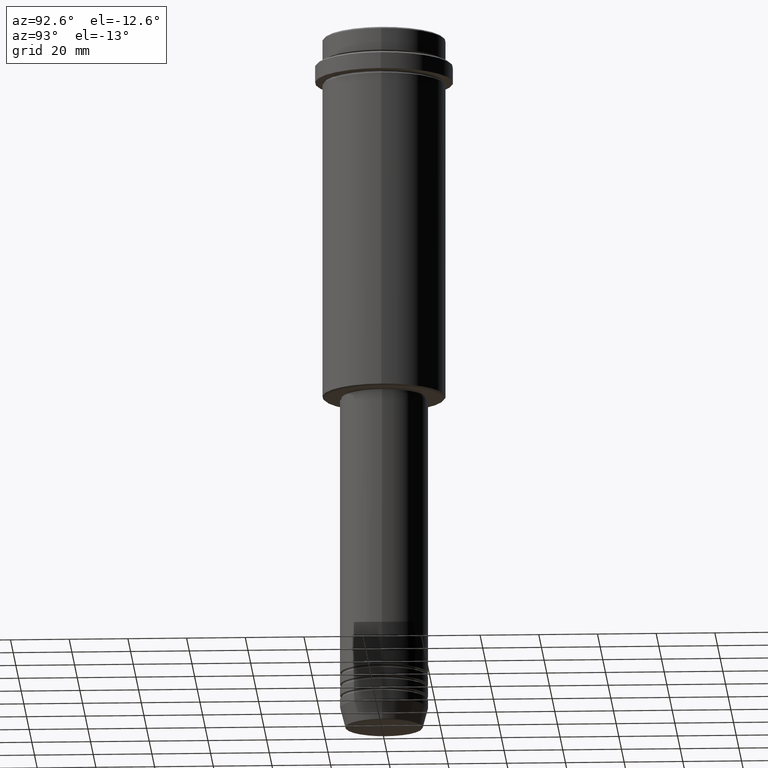
[diagram: clean part render]
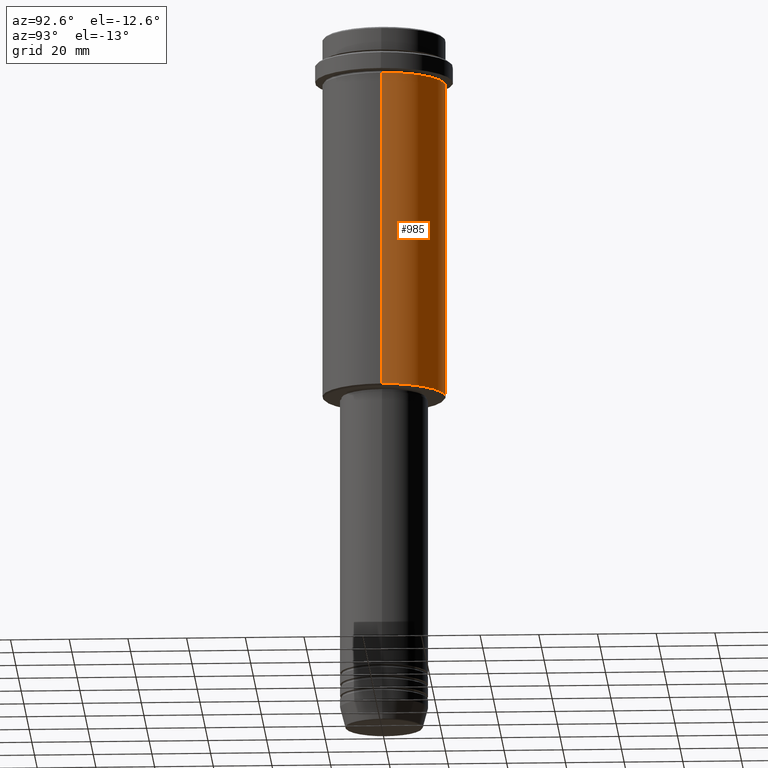
[diagram: same view with one face highlighted and labeled with its STEP entity id]
A machine part, auxiliary view. The second image highlights one B-rep face of the part: STEP entity #985.
In plain terms, the highlighted cylindrical surface (partial cylindrical patch) has radius 21 mm, axis along (-0, -0, 1).
Its self-contained STEP definition (entity closure, byte-faithful):
#6 = DIRECTION ( 'NONE',  ( -0.000000000000000000, -0.000000000000000000, 1.000000000000000000 ) ) ;
#15 = VECTOR ( 'NONE', #329, 1000.000000000000000 ) ;
#25 = LINE ( 'NONE', #1205, #15 ) ;
#66 = EDGE_LOOP ( 'NONE', ( #1351, #1109, #126, #1159 ) ) ;
#93 = CARTESIAN_POINT ( 'NONE',  ( -21.00000000000000000, 2.571758278209441661E-15, -124.4999999999999289 ) ) ;
#126 = ORIENTED_EDGE ( 'NONE', *, *, #1198, .F. ) ;
#127 = EDGE_CURVE ( 'NONE', #935, #1067, #25, .T. ) ;
#157 = CIRCLE ( 'NONE', #517, 21.00000000000000000 ) ;
#212 = CARTESIAN_POINT ( 'NONE',  ( 0.000000000000000000, 0.000000000000000000, 0.000000000000000000 ) ) ;
#226 = VECTOR ( 'NONE', #1246, 1000.000000000000000 ) ;
#268 = CARTESIAN_POINT ( 'NONE',  ( 21.00000000000000000, 0.000000000000000000, -124.4999999999999289 ) ) ;
#270 = EDGE_CURVE ( 'NONE', #697, #840, #365, .T. ) ;
#329 = DIRECTION ( 'NONE',  ( -0.000000000000000000, -0.000000000000000000, 1.000000000000000000 ) ) ;
#365 = LINE ( 'NONE', #921, #226 ) ;
#417 = CYLINDRICAL_SURFACE ( 'NONE', #845, 21.00000000000000000 ) ;
#424 = FACE_OUTER_BOUND ( 'NONE', #66, .T. ) ;
#517 = AXIS2_PLACEMENT_3D ( 'NONE', #649, #6, #860 ) ;
#534 = EDGE_CURVE ( 'NONE', #697, #935, #157, .T. ) ;
#565 = CIRCLE ( 'NONE', #1050, 21.00000000000000000 ) ;
#649 = CARTESIAN_POINT ( 'NONE',  ( 0.000000000000000000, 0.000000000000000000, -124.4999999999999289 ) ) ;
#669 = CARTESIAN_POINT ( 'NONE',  ( -21.00000000000000000, 2.571758278209441661E-15, -16.00000000000000355 ) ) ;
#697 = VERTEX_POINT ( 'NONE', #268 ) ;
#768 = DIRECTION ( 'NONE',  ( -0.000000000000000000, -0.000000000000000000, 1.000000000000000000 ) ) ;
#840 = VERTEX_POINT ( 'NONE', #1363 ) ;
#845 = AXIS2_PLACEMENT_3D ( 'NONE', #212, #768, #1294 ) ;
#860 = DIRECTION ( 'NONE',  ( -1.000000000000000000, 0.000000000000000000, 0.000000000000000000 ) ) ;
#911 = DIRECTION ( 'NONE',  ( -0.000000000000000000, -0.000000000000000000, 1.000000000000000000 ) ) ;
#921 = CARTESIAN_POINT ( 'NONE',  ( 21.00000000000000000, 0.000000000000000000, 0.000000000000000000 ) ) ;
#935 = VERTEX_POINT ( 'NONE', #93 ) ;
#985 = ADVANCED_FACE ( 'NONE', ( #424 ), #417, .T. ) ;
#1027 = DIRECTION ( 'NONE',  ( 1.000000000000000000, 0.000000000000000000, 0.000000000000000000 ) ) ;
#1050 = AXIS2_PLACEMENT_3D ( 'NONE', #1338, #911, #1027 ) ;
#1067 = VERTEX_POINT ( 'NONE', #669 ) ;
#1109 = ORIENTED_EDGE ( 'NONE', *, *, #127, .T. ) ;
#1159 = ORIENTED_EDGE ( 'NONE', *, *, #270, .F. ) ;
#1198 = EDGE_CURVE ( 'NONE', #840, #1067, #565, .T. ) ;
#1205 = CARTESIAN_POINT ( 'NONE',  ( -21.00000000000000000, 2.571758278209441661E-15, 0.000000000000000000 ) ) ;
#1246 = DIRECTION ( 'NONE',  ( -0.000000000000000000, -0.000000000000000000, 1.000000000000000000 ) ) ;
#1294 = DIRECTION ( 'NONE',  ( 1.000000000000000000, 0.000000000000000000, 0.000000000000000000 ) ) ;
#1338 = CARTESIAN_POINT ( 'NONE',  ( 0.000000000000000000, 0.000000000000000000, -16.00000000000000355 ) ) ;
#1351 = ORIENTED_EDGE ( 'NONE', *, *, #534, .T. ) ;
#1363 = CARTESIAN_POINT ( 'NONE',  ( 21.00000000000000000, 0.000000000000000000, -16.00000000000000355 ) ) ;